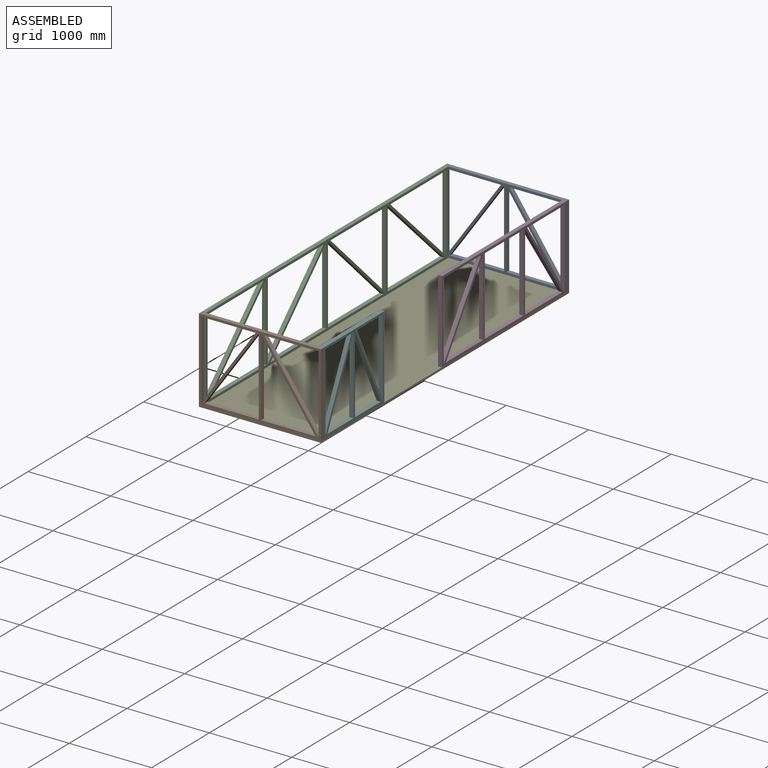
[diagram: assembled view]
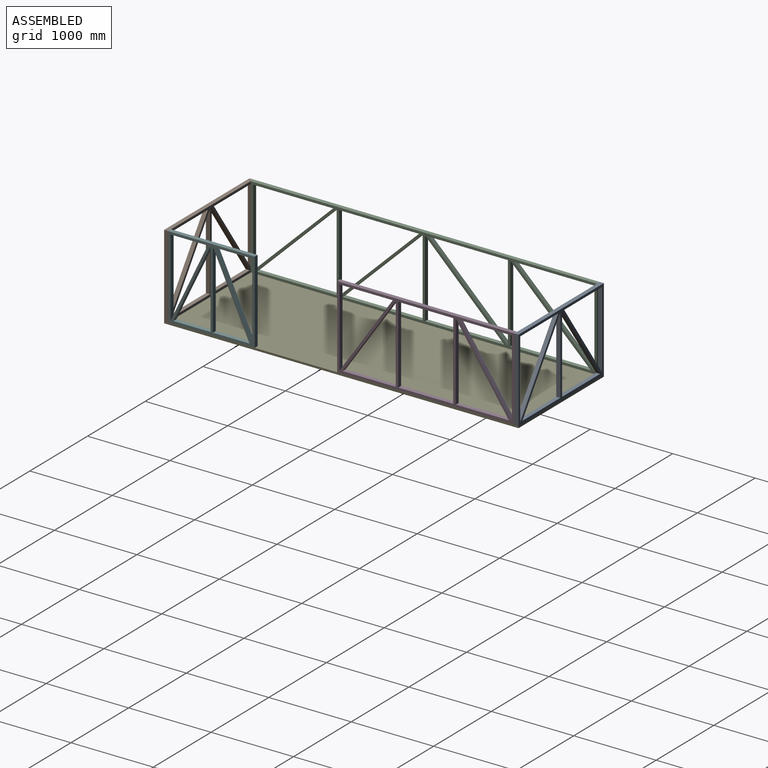
[diagram: assembled view, second angle]
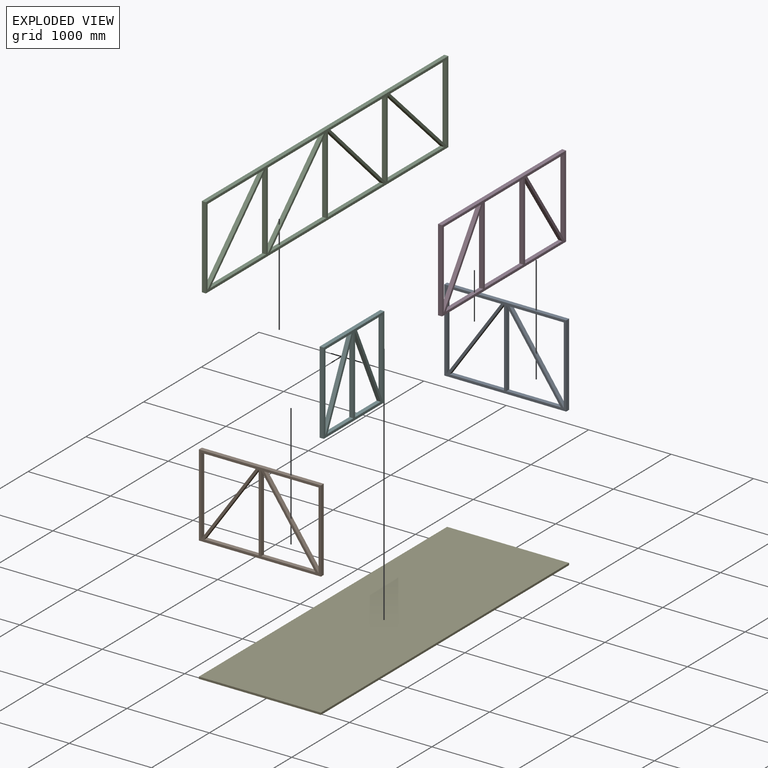
[diagram: exploded view]
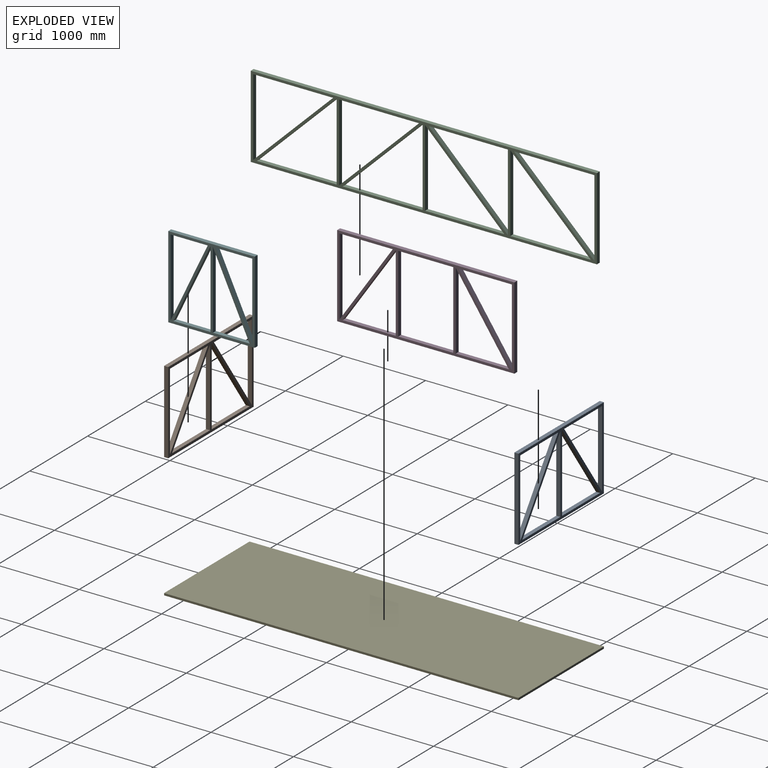
[diagram: exploded view, second angle]
ASSEMBLY  parts=6 mates=5
PART A: 19 faces, bbox 1480x50x1000 mm
  f0: plane 940x50mm, normal (-1,0,0), area 47000mm2, adj f1,f16,f17,f18
  f1: plane 658.37x50mm, normal (0,0,1), area 32918.7mm2, adj f0,f16,f17,f18
  f2: plane 658.37x50mm, normal (0,0,1), area 32918.7mm2, adj f3,f12,f17,f18
  f3: plane 940x50mm, normal (1,0,0), area 47000mm2, adj f2,f12,f17,f18
  f4: plane 940x50mm, normal (1,0,0), area 47000mm2, adj f5,f13,f17,f18
  f5: plane 658.37x50mm, normal (0,0,-1), area 32918.7mm2, adj f4,f13,f17,f18
  f6: plane 1480x50mm, normal (0,0,-1), area 74000mm2, adj f7,f14,f17,f18
  f7: plane 1000x50mm, normal (1,0,0), area 50000mm2, adj f6,f8,f17,f18
  f8: plane 1480x50mm, normal (0,0,1), area 74000mm2, adj f7,f14,f17,f18
  f9: plane 940x50mm, normal (-1,0,0), area 47000mm2, adj f10,f15,f17,f18
  f10: plane 940x658.37mm, normal (0.82,0,0.57), area 57381.5mm2, adj f9,f15,f17,f18
  f11: cylinder r=0.5mm len=50mm, axis (0,1,0), area 157.1mm2, adj f17,f18
  f12: plane 940x658.37mm, normal (-0.82,0,-0.57), area 57381.5mm2, adj f2,f3,f17,f18
  f13: plane 940x658.37mm, normal (-0.82,0,0.57), area 57381.5mm2, adj f4,f5,f17,f18
  f14: plane 1000x50mm, normal (-1,0,0), area 50000mm2, adj f6,f8,f17,f18
  f15: plane 658.37x50mm, normal (0,0,-1), area 32918.7mm2, adj f9,f10,f17,f18
  f16: plane 940x658.37mm, normal (0.82,0,-0.57), area 57381.5mm2, adj f0,f1,f17,f18
  f17: plane 1480x1000mm, normal (0,-1,0), area 242257mm2, adj f0,f1,f2,f3,f4,f5,f6,f7
  f18: plane 1480x1000mm, normal (0,1,0), area 242257mm2, adj f0,f1,f2,f3,f4,f5,f6,f7
PART B: same geometry as A
PART C: 31 faces, bbox 50x4200x1000 mm
  f0: plane 969.41x940mm, normal (0,-0.7,0.72), area 67515.7mm2, adj f1,f19,f29,f30
  f1: plane 940x50mm, normal (0,1,0), area 47000mm2, adj f0,f19,f29,f30
  f2: plane 1000x50mm, normal (0,-1,0), area 50000mm2, adj f3,f20,f29,f30
  f3: plane 4200x50mm, normal (0,0,-1), area 210000mm2, adj f2,f4,f29,f30
  f4: plane 1000x50mm, normal (0,1,0), area 50000mm2, adj f3,f20,f29,f30
  f5: plane 969.41x50mm, normal (0,0,1), area 48470.2mm2, adj f6,f21,f29,f30
  f6: plane 969.41x940mm, normal (0,0.7,-0.72), area 67515.7mm2, adj f5,f21,f29,f30
  f7: plane 969.41x940mm, normal (0,-0.7,0.72), area 67515.7mm2, adj f8,f22,f29,f30
  f8: plane 940x50mm, normal (0,1,0), area 47000mm2, adj f7,f22,f29,f30
  f9: plane 969.41x50mm, normal (0,0,1), area 48470.2mm2, adj f10,f23,f29,f30
  f10: plane 969.41x940mm, normal (0,0.7,-0.72), area 67515.7mm2, adj f9,f23,f29,f30
  f11: plane 962.07x50mm, normal (0,0,1), area 48103.6mm2, adj f12,f24,f29,f30
  f12: plane 940x50mm, normal (0,1,0), area 47000mm2, adj f11,f24,f29,f30
  f13: plane 940x50mm, normal (0,-1,0), area 47000mm2, adj f14,f25,f29,f30
  f14: plane 962.07x940mm, normal (0,0.7,0.72), area 67252.9mm2, adj f13,f25,f29,f30
  f15: plane 976.74x50mm, normal (0,0,1), area 48836.8mm2, adj f16,f26,f29,f30
  f16: plane 940x50mm, normal (0,1,0), area 47000mm2, adj f15,f26,f29,f30
  f17: plane 940x50mm, normal (0,-1,0), area 47000mm2, adj f18,f27,f29,f30
  f18: plane 976.74x940mm, normal (0,0.69,0.72), area 67779.3mm2, adj f17,f27,f29,f30
  f19: plane 969.41x50mm, normal (0,0,-1), area 48470.2mm2, adj f0,f1,f29,f30
  f20: plane 4200x50mm, normal (0,0,1), area 210000mm2, adj f2,f4,f29,f30
  f21: plane 940x50mm, normal (0,-1,0), area 47000mm2, adj f5,f6,f29,f30
  f22: plane 969.41x50mm, normal (0,0,-1), area 48470.2mm2, adj f7,f8,f29,f30
  f23: plane 940x50mm, normal (0,-1,0), area 47000mm2, adj f9,f10,f29,f30
  f24: plane 962.07x940mm, normal (0,-0.7,-0.72), area 67252.9mm2, adj f11,f12,f29,f30
  f25: plane 962.07x50mm, normal (0,0,-1), area 48103.6mm2, adj f13,f14,f29,f30
  f26: plane 976.74x940mm, normal (0,-0.69,-0.72), area 67779.3mm2, adj f15,f16,f29,f30
  f27: plane 976.74x50mm, normal (0,0,-1), area 48836.8mm2, adj f17,f18,f29,f30
  f28: cylinder r=0.5mm len=50mm, axis (-1,0,0), area 157.1mm2, adj f29,f30
  f29: plane 4200x1000mm, normal (1,0,0), area 555037.4mm2, adj f0,f1,f2,f3,f4,f5,f6,f7
  f30: plane 4200x1000mm, normal (-1,0,0), area 555037.4mm2, adj f0,f1,f2,f3,f4,f5,f6,f7
PART D: 23 faces, bbox 50x2150x1000 mm
  f0: plane 940x50mm, normal (0,1,0), area 47000mm2, adj f1,f20,f21,f22
  f1: plane 644.62x50mm, normal (0,0,-1), area 32231.2mm2, adj f0,f20,f21,f22
  f2: plane 940x50mm, normal (0,-1,0), area 47000mm2, adj f3,f15,f21,f22
  f3: plane 644.62x50mm, normal (0,0,1), area 32231.2mm2, adj f2,f15,f21,f22
  f4: plane 1000x50mm, normal (0,-1,0), area 50000mm2, adj f5,f16,f21,f22
  f5: plane 2150x50mm, normal (0,0,-1), area 107500mm2, adj f4,f6,f21,f22
  f6: plane 1000x50mm, normal (0,1,0), area 50000mm2, adj f5,f16,f21,f22
  f7: plane 940x50mm, normal (0,-1,0), area 47000mm2, adj f8,f17,f21,f22
  f8: plane 940x644.62mm, normal (0,0.82,0.57), area 56989.9mm2, adj f7,f17,f21,f22
  f9: plane 668x50mm, normal (0,0,1), area 33400mm2, adj f10,f18,f21,f22
  f10: plane 940x50mm, normal (0,1,0), area 47000mm2, adj f9,f11,f21,f22
  f11: plane 668x50mm, normal (0,0,-1), area 33400mm2, adj f10,f18,f21,f22
  f12: plane 644.62x50mm, normal (0,0,1), area 32231.2mm2, adj f13,f19,f21,f22
  f13: plane 940x50mm, normal (0,1,0), area 47000mm2, adj f12,f19,f21,f22
  f14: cylinder r=0.5mm len=50mm, axis (-1,0,0), area 157.1mm2, adj f21,f22
  f15: plane 940x644.62mm, normal (0,0.82,-0.57), area 56989.9mm2, adj f2,f3,f21,f22
  f16: plane 2150x50mm, normal (0,0,1), area 107500mm2, adj f4,f6,f21,f22
  f17: plane 644.62x50mm, normal (0,0,-1), area 32231.2mm2, adj f7,f8,f21,f22
  f18: plane 940x50mm, normal (0,-1,0), area 47000mm2, adj f9,f11,f21,f22
  f19: plane 940x644.62mm, normal (0,-0.82,-0.57), area 56989.9mm2, adj f12,f13,f21,f22
  f20: plane 940x644.62mm, normal (0,-0.82,0.57), area 56989.9mm2, adj f0,f1,f21,f22
  f21: plane 2150x1000mm, normal (1,0,0), area 310187.1mm2, adj f0,f1,f2,f3,f4,f5,f6,f7
  f22: plane 2150x1000mm, normal (-1,0,0), area 310187.1mm2, adj f0,f1,f2,f3,f4,f5,f6,f7
PART E: 6 faces, bbox 1480x4300x25 mm
  f0: plane 4300x25mm, normal (-1,0,0), area 107500mm2, adj f1,f3,f4,f5
  f1: plane 1480x25mm, normal (0,-1,0), area 37000mm2, adj f0,f2,f4,f5
  f2: plane 4300x25mm, normal (1,0,0), area 107500mm2, adj f1,f3,f4,f5
  f3: plane 1480x25mm, normal (0,1,0), area 37000mm2, adj f0,f2,f4,f5
  f4: plane 4300x1480mm, normal (0,0,1), area 6364000mm2, adj f0,f1,f2,f3
  f5: plane 4300x1480mm, normal (0,0,-1), area 6364000mm2, adj f0,f1,f2,f3
PART F: 19 faces, bbox 50x1050x1000 mm
  f0: plane 444.32x50mm, normal (0,0,1), area 22215.9mm2, adj f1,f11,f17,f18
  f1: plane 940x50mm, normal (0,1,0), area 47000mm2, adj f0,f11,f17,f18
  f2: plane 1000x50mm, normal (0,-1,0), area 50000mm2, adj f3,f12,f17,f18
  f3: plane 1050x50mm, normal (0,0,-1), area 52500mm2, adj f2,f4,f17,f18
  f4: plane 1000x50mm, normal (0,1,0), area 50000mm2, adj f3,f12,f17,f18
  f5: plane 940x50mm, normal (0,-1,0), area 47000mm2, adj f6,f13,f17,f18
  f6: plane 449.25x50mm, normal (0,0,1), area 22462.5mm2, adj f5,f13,f17,f18
  f7: plane 449.25x50mm, normal (0,0,-1), area 22462.5mm2, adj f8,f14,f17,f18
  f8: plane 940x449.25mm, normal (0,-0.9,0.43), area 52091.9mm2, adj f7,f14,f17,f18
  f9: plane 940x50mm, normal (0,-1,0), area 47000mm2, adj f10,f15,f17,f18
  f10: plane 940x444.32mm, normal (0,0.9,0.43), area 51986mm2, adj f9,f15,f17,f18
  f11: plane 940x444.32mm, normal (0,-0.9,-0.43), area 51986mm2, adj f0,f1,f17,f18
  f12: plane 1050x50mm, normal (0,0,1), area 52500mm2, adj f2,f4,f17,f18
  f13: plane 940x449.25mm, normal (0,0.9,-0.43), area 52091.9mm2, adj f5,f6,f17,f18
  f14: plane 940x50mm, normal (0,1,0), area 47000mm2, adj f7,f8,f17,f18
  f15: plane 444.32x50mm, normal (0,0,-1), area 22215.9mm2, adj f9,f10,f17,f18
  f16: cylinder r=0.5mm len=50mm, axis (-1,0,0), area 157.1mm2, adj f17,f18
  f17: plane 1050x1000mm, normal (1,0,0), area 210045.9mm2, adj f0,f1,f2,f3,f4,f5,f6,f7
  f18: plane 1050x1000mm, normal (-1,0,0), area 210045.9mm2, adj f0,f1,f2,f3,f4,f5,f6,f7
PLACE A t=(-726.66,2157.55,12.28)mm
PLACE B t=(-726.66,-2092.45,12.28)mm
PLACE C t=(-726.66,-2092.45,12.28)mm
PLACE D t=(703.34,-42.45,12.28)mm
PLACE E t=(-726.66,-2142.45,-12.72)mm fixed
PLACE F t=(703.34,-2092.45,12.28)mm
MATE fastened D.f5 <-> A.f6  axis (0,0,-1) through (753.34,2107.55,12.28)mm
MATE fastened B.f6 <-> E.f4  axis (0,0,-1) through (-726.66,-2142.45,12.28)mm
MATE fastened A.f6 <-> E.f4  axis (0,0,-1) through (-726.66,2157.55,12.28)mm
MATE fastened F.f3 <-> B.f6  axis (0,0,-1) through (753.34,-2092.45,12.28)mm
MATE fastened C.f3 <-> B.f6  axis (0,0,-1) through (-726.66,-2092.45,12.28)mm
